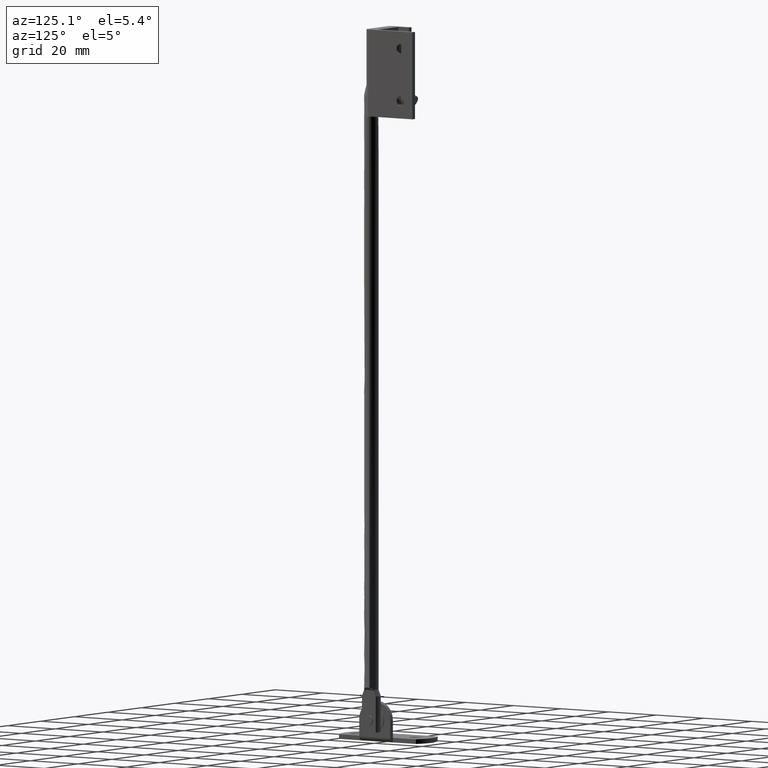
[diagram: clean part render]
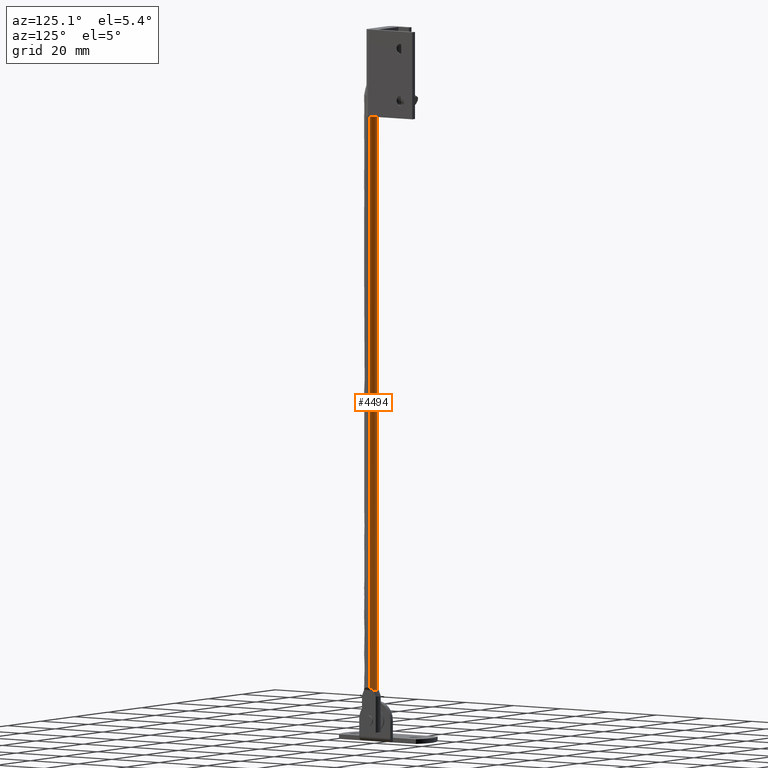
[diagram: same view with one face highlighted and labeled with its STEP entity id]
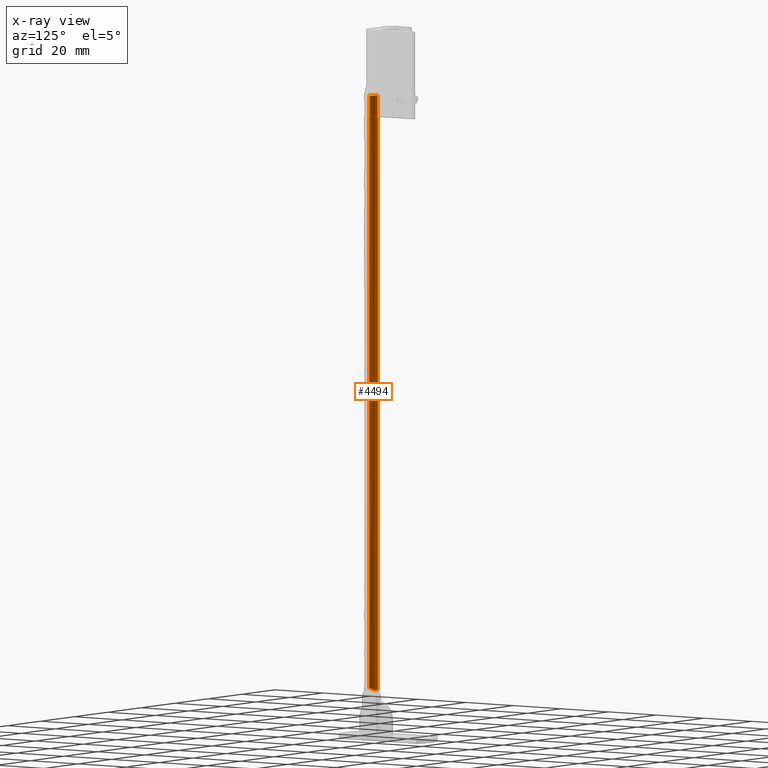
[diagram: x-ray of the same camera — body ghosted, the highlighted face saturated]
A machine part, auxiliary view. The second image highlights one B-rep face of the part: STEP entity #4494.
The next image is the same camera in x-ray: the body ghosted, the highlighted face saturated — about 0% of this face is hidden behind the body in this view.
In plain terms, the highlighted face is a freeform B-spline surface patch.
Its self-contained STEP definition (entity closure, byte-faithful):
#4415=CARTESIAN_POINT('',(12.471391747047381,0.791491311956200,12.971641699505231));
#4416=CARTESIAN_POINT('',(11.886641032774278,2.543472994783045,12.971641699505229));
#4417=CARTESIAN_POINT('',(10.040179393868639,2.499284411941147,12.971641699505231));
#4418=CARTESIAN_POINT('',(12.471391747047381,0.791491311956186,228.490521052789260));
#4419=CARTESIAN_POINT('',(11.886641032774278,2.543472994783032,228.490521052789260));
#4420=CARTESIAN_POINT('',(10.040179393868639,2.499284411941134,228.490521052789210));
#4428=(BOUNDED_SURFACE()B_SPLINE_SURFACE(2,1,((#4415,#4418),(#4416,#4419),(#4417,#4420)),.UNSPECIFIED.,.F.,.F.,.U.)B_SPLINE_SURFACE_WITH_KNOTS((3,3),(2,2),(0.0,3.291121809716611),(0.0,215.518879353284010),.UNSPECIFIED.)GEOMETRIC_REPRESENTATION_ITEM()RATIONAL_B_SPLINE_SURFACE(((0.906274169979695,0.906274169979695),(0.765685424949238,0.765685424949238),(1.0,1.0)))REPRESENTATION_ITEM('')SURFACE());
#4429=CARTESIAN_POINT('',(10.040179391890209,2.499284411893782,223.233963019317090));
#4430=VERTEX_POINT('',#4429);
#4431=CARTESIAN_POINT('',(12.471391746893170,0.791491312418254,223.233963019317000));
#4432=VERTEX_POINT('',#4431);
#4433=CARTESIAN_POINT('',(10.040179391890209,2.499284411893782,223.233963019317120));
#4434=CARTESIAN_POINT('',(10.070080914295197,2.499999999999989,223.233963019317030));
#4435=CARTESIAN_POINT('',(10.099990999999800,2.499999999999989,223.233963019317000));
#4436=CARTESIAN_POINT('',(11.901150809733570,2.499999999999989,223.233963019316950));
#4437=CARTESIAN_POINT('',(12.471391746893165,0.791491312418254,223.233963019317000));
#4445=(BOUNDED_CURVE()B_SPLINE_CURVE(2,(#4433,#4434,#4435,#4436,#4437),.UNSPECIFIED.,.F.,.U.)B_SPLINE_CURVE_WITH_KNOTS((3,2,3),(0.745790933837440,0.750000000000000,0.946177893175175),.UNSPECIFIED.)CURVE()GEOMETRIC_REPRESENTATION_ITEM()RATIONAL_B_SPLINE_CURVE((0.990303591418364,0.995068772253797,1.0,0.770163301631525,0.901037637345176))REPRESENTATION_ITEM(''));
#4446=EDGE_CURVE('',#4430,#4432,#4445,.T.);
#4447=ORIENTED_EDGE('',*,*,#4446,.T.);
#4448=CARTESIAN_POINT('',(12.471378615132220,0.791486928897166,18.971365482898062));
#4449=VERTEX_POINT('',#4448);
#4450=CARTESIAN_POINT('',(12.471378615132220,0.791486928897166,18.971365482898062));
#4451=CARTESIAN_POINT('',(12.471391746893170,0.791491312418254,223.233963019317000));
#4452=QUASI_UNIFORM_CURVE('',1,(#4450,#4451),.UNSPECIFIED.,.F.,.U.);
#4453=EDGE_CURVE('',#4449,#4432,#4452,.T.);
#4454=ORIENTED_EDGE('',*,*,#4453,.F.);
#4455=CARTESIAN_POINT('',(11.599990999999800,1.999926249020900,18.099990999999900));
#4456=VERTEX_POINT('',#4455);
#4457=CARTESIAN_POINT('',(11.599990999999800,1.999926249020900,18.099990999999900));
#4458=CARTESIAN_POINT('',(12.224301224880751,1.531704429201657,18.724293934236911));
#4459=CARTESIAN_POINT('',(12.471378615132222,0.791486928897166,18.971365482898065));
#4467=(BOUNDED_CURVE()B_SPLINE_CURVE(2,(#4457,#4458,#4459),.UNSPECIFIED.,.F.,.U.)B_SPLINE_CURVE_WITH_KNOTS((3,3),(0.0,0.325050036269895),.UNSPECIFIED.)CURVE()GEOMETRIC_REPRESENTATION_ITEM()RATIONAL_B_SPLINE_CURVE((1.0,0.931368678213422,0.951971810970756))REPRESENTATION_ITEM(''));
#4468=EDGE_CURVE('',#4456,#4449,#4467,.T.);
#4469=ORIENTED_EDGE('',*,*,#4468,.F.);
#4470=CARTESIAN_POINT('',(10.040179715357761,2.499250620640429,18.099990999999850));
#4471=VERTEX_POINT('',#4470);
#4472=CARTESIAN_POINT('',(10.040179715357761,2.499250620640429,18.099990999999850));
#4473=CARTESIAN_POINT('',(10.060112706369180,2.499728263391615,18.099990999999850));
#4474=CARTESIAN_POINT('',(10.080051432048780,2.499967168318439,18.099990999999850));
#4475=CARTESIAN_POINT('',(10.263611457724320,2.499963562540244,18.099990999999861));
#4476=CARTESIAN_POINT('',(10.427228654176750,2.483845788125815,18.099990999999861));
#4477=CARTESIAN_POINT('',(10.748183271074840,2.419998936819376,18.099990999999878));
#4478=CARTESIAN_POINT('',(10.905512755285139,2.372271438666584,18.099990999999871));
#4479=CARTESIAN_POINT('',(11.207845403387330,2.247037762961341,18.099990999999889));
#4480=CARTESIAN_POINT('',(11.352841091508710,2.169534682058310,18.099990999999900));
#4481=CARTESIAN_POINT('',(11.526628399046640,2.053412667420378,18.099990999999900));
#4482=CARTESIAN_POINT('',(11.563680335218180,2.027163603905295,18.099990999999900));
#4483=CARTESIAN_POINT('',(11.599990999999800,1.999926249020900,18.099990999999900));
#4484=B_SPLINE_CURVE_WITH_KNOTS('',3,(#4472,#4473,#4474,#4475,#4476,#4477,#4478,#4479,#4480,#4481,#4482,#4483),.UNSPECIFIED.,.F.,.U.,(4,2,2,2,2,4),(0.246191893878255,0.250000000066466,0.281250000066466,0.312500000066466,0.343750000066466,0.352419213163895),.UNSPECIFIED.);
#4485=EDGE_CURVE('',#4471,#4456,#4484,.T.);
#4486=ORIENTED_EDGE('',*,*,#4485,.F.);
#4487=CARTESIAN_POINT('',(10.040179715357761,2.499250620640429,18.099990999999850));
#4488=CARTESIAN_POINT('',(10.040179391890209,2.499284411893782,223.233963019317090));
#4489=QUASI_UNIFORM_CURVE('',1,(#4487,#4488),.UNSPECIFIED.,.F.,.U.);
#4490=EDGE_CURVE('',#4471,#4430,#4489,.T.);
#4491=ORIENTED_EDGE('',*,*,#4490,.T.);
#4492=EDGE_LOOP('',(#4447,#4454,#4469,#4486,#4491));
#4493=FACE_OUTER_BOUND('',#4492,.T.);
#4494=ADVANCED_FACE('',(#4493),#4428,.T.);